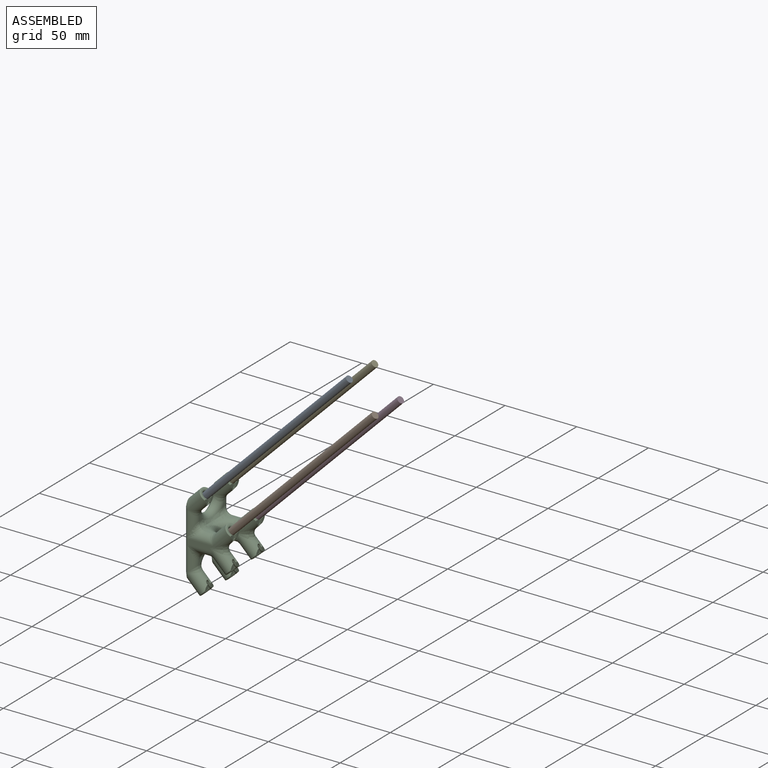
[diagram: assembled view]
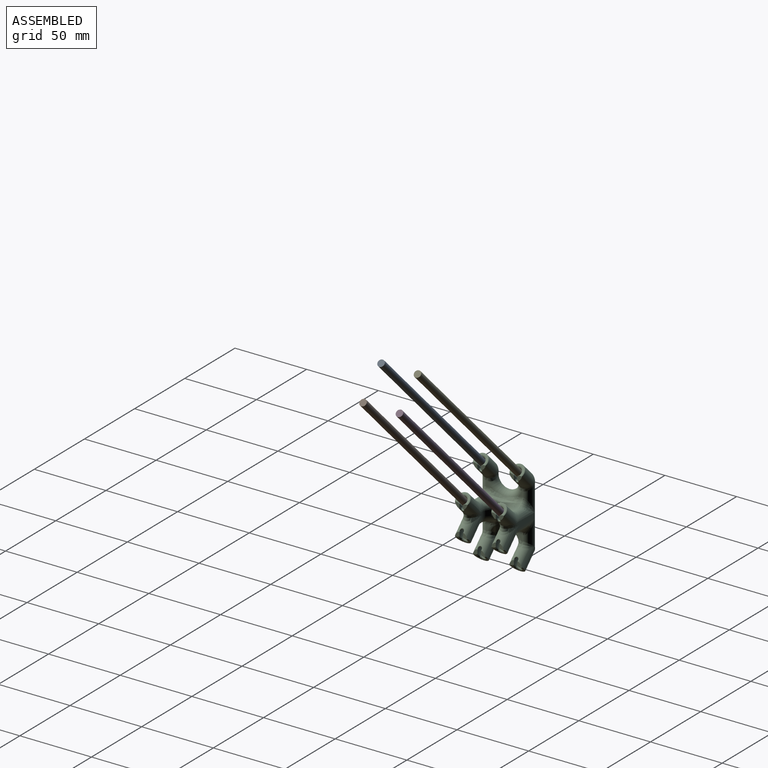
[diagram: assembled view, second angle]
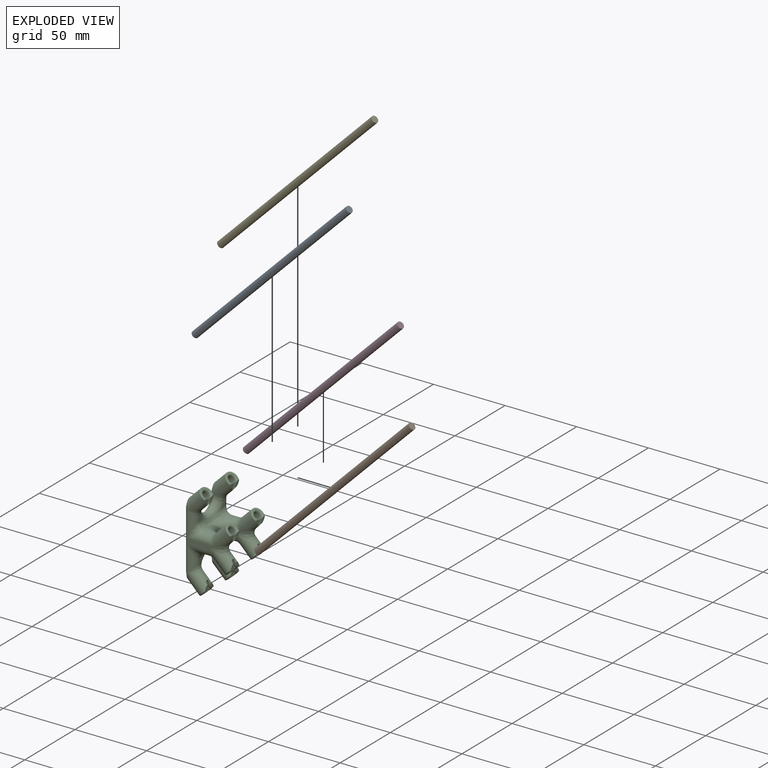
[diagram: exploded view]
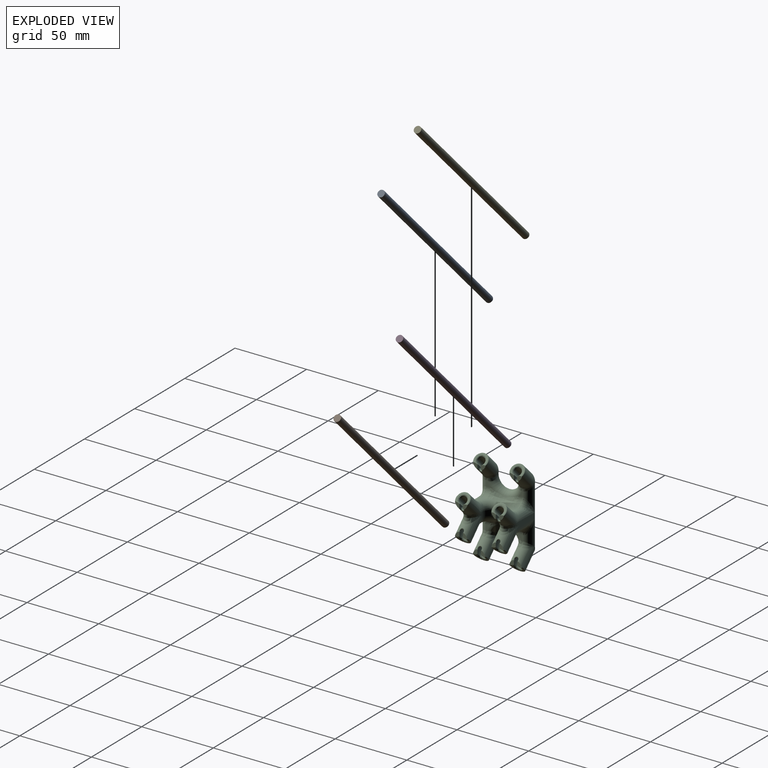
[diagram: exploded view, second angle]
ASSEMBLY  parts=5 mates=4
PART A: 3 faces, bbox 4.8x4.8x152.4 mm
  f0: cylinder r=2.38mm len=152.4mm, axis (0,0,-1), area 2280.2mm2, adj f1,f2
  f1: plane 4.76x4.76mm, normal (0,0,1), area 17.8mm2, adj f0
  f2: plane 4.76x4.76mm, normal (0,0,-1), area 17.8mm2, adj f0
PART B: same geometry as A
PART C: 252 faces, bbox 35.7x36.7x68.6 mm
  f0: plane 4.04x3.52mm, normal (1,0,0), area 7.5mm2, adj f102,f104,f118,f120,f164,f223,f239
  f1: plane 4.04x3.52mm, normal (1,0,0), area 7.5mm2, adj f103,f105,f117,f119,f166,f212,f236
  f2: plane 4.04x3.52mm, normal (1,0,0), area 7.5mm2, adj f78,f82,f96,f98,f160,f200,f232
  f3: plane 4.04x3.52mm, normal (1,0,0), area 7.5mm2, adj f80,f83,f95,f97,f162,f206,f235
  f4: cylinder r=5mm len=17.32mm, axis (0.71,0,0.71), area 356.9mm2, adj f10,f20,f45,f55,f60,f61,f62,f148
  f5: cylinder r=5mm len=17.32mm, axis (0.71,0,0.71), area 341mm2, adj f11,f21,f46,f54,f57,f58,f59,f149
  f6: cylinder r=2.54mm len=11.02mm, axis (0.71,0,0.71), area 154.4mm2, adj f8,f52,f177,f178,f179,f180
  f7: cylinder r=2.54mm len=11.02mm, axis (0.71,0,0.71), area 154.4mm2, adj f9,f53,f195,f196,f197,f198
  f8: bspline ~8.07x5.43mm, area 36.2mm2, adj f6,f11,f44,f149,f176,f181
  f9: bspline ~8.07x5.43mm, area 36.2mm2, adj f7,f10,f43,f148,f194,f199
  f10: plane 4.04x3.52mm, normal (1,0,0), area 7.5mm2, adj f4,f9,f43,f55,f157,f194,f231
  f11: plane 4.04x3.52mm, normal (1,0,0), area 7.5mm2, adj f5,f8,f44,f54,f159,f176,f229
  f12: cylinder r=5mm len=19.22mm, axis (0.71,0,0.71), area 315.3mm2, adj f18,f20,f25,f29,f39,f66,f67,f68
  f13: cylinder r=5mm len=19.22mm, axis (0.71,0,0.71), area 326.9mm2, adj f19,f21,f26,f30,f38,f63,f64,f65
  f14: cylinder r=2.54mm len=11.02mm, axis (0.71,0,0.71), area 154.4mm2, adj f16,f36,f189,f190,f191,f192
  f15: cylinder r=2.54mm len=11.02mm, axis (0.71,0,0.71), area 154.4mm2, adj f17,f37,f183,f184,f185,f186
  f16: bspline ~8.07x5.43mm, area 36.2mm2, adj f14,f19,f28,f151,f188,f193
  f17: bspline ~8.07x5.43mm, area 36.2mm2, adj f15,f18,f27,f150,f182,f187
  f18: plane 4.04x3.52mm, normal (1,0,0), area 7.5mm2, adj f12,f17,f27,f39,f153,f182,f225
  f19: plane 4.04x3.52mm, normal (1,0,0), area 7.5mm2, adj f13,f16,f28,f38,f155,f193,f227
  f20: plane 39.82x18mm, normal (0,-1,0), area 67.9mm2, adj f4,f12,f34,f50,f78,f89,f102,f111
  f21: plane 39.82x18mm, normal (0,1,0), area 67.9mm2, adj f5,f13,f35,f51,f80,f90,f103,f112
  f22: plane 3.84x2.56mm, normal (0,0,1), area 5.5mm2, adj f33,f35,f64,f70
  f23: plane 3.84x2.56mm, normal (0,0,1), area 5.5mm2, adj f31,f34,f67,f74
  f24: cylinder r=7.7mm len=15.4mm, axis (0,0,-1), area 91mm2, adj f25,f26,f29,f30,f31,f32,f33,f79
  f25: bspline ~7.95x7.08mm, area 1.1mm2, adj f12,f24,f141
  f26: bspline ~7.95x7.08mm, area 1.1mm2, adj f13,f24,f143
  f27: plane 9.02x4.73mm, normal (0.71,0,0.71), area 8.3mm2, adj f17,f18,f39,f150
  f28: plane 9.02x4.73mm, normal (0.71,0,0.71), area 8.3mm2, adj f16,f19,f38,f151
  f29: plane 10.18x10.18mm, normal (0,1,0), area 5.3mm2, adj f12,f24,f31,f68
  f30: plane 10.18x10.18mm, normal (0,-1,0), area 5.3mm2, adj f13,f24,f33,f63
  f31: torus R=12.7mm, axis (0,0,1), area 73.6mm2, adj f23,f24,f29,f32,f68,f73
  f32: bspline ~5.17x5.09mm, area 8.8mm2, adj f24,f31,f33,f72
  f33: torus R=12.7mm, axis (0,0,1), area 73.6mm2, adj f22,f24,f30,f32,f63,f71
  f34: cylinder r=5mm len=17.96mm, axis (1,0,0), area 74.8mm2, adj f20,f23,f66,f75
  f35: cylinder r=5mm len=17.96mm, axis (1,0,0), area 74.8mm2, adj f21,f22,f65,f69
  f36: plane 5.08x3.59mm, normal (0.71,0,0.71), area 20.3mm2, adj f14
  f37: plane 5.08x3.59mm, normal (0.71,0,0.71), area 20.3mm2, adj f15
  f38: torus R=4.5mm, axis (-0.71,0,-0.71), area 15.7mm2, adj f13,f19,f28,f151
  f39: torus R=4.5mm, axis (-0.71,0,-0.71), area 15.7mm2, adj f12,f18,f27,f150
  f40: plane 3.84x2.56mm, normal (1,0,0), area 5.5mm2, adj f49,f51,f58,f70
  f41: plane 3.84x2.56mm, normal (1,0,0), area 5.5mm2, adj f47,f50,f61,f74
  f42: cylinder r=7.7mm len=15.4mm, axis (-1,0,0), area 1mm2, adj f45,f46,f47,f48,f49,f250
  f43: plane 9.02x4.7mm, normal (0.71,0,0.71), area 8.2mm2, adj f9,f10,f55,f148
  f44: plane 9.02x4.7mm, normal (0.71,0,0.71), area 8.2mm2, adj f8,f11,f54,f149
  f45: plane 10.04x9.77mm, normal (0,1,0), area 5.3mm2, adj f4,f42,f47,f60,f251
  f46: plane 10.04x9.77mm, normal (0,-1,0), area 5.3mm2, adj f5,f42,f49,f59,f248
  f47: torus R=12.7mm, axis (1,0,0), area 73.6mm2, adj f41,f42,f45,f48,f60,f73
  f48: bspline ~5.17x5.09mm, area 8.8mm2, adj f42,f47,f49,f72
  f49: torus R=12.7mm, axis (1,0,0), area 73.6mm2, adj f40,f42,f46,f48,f59,f71
  f50: cylinder r=5mm len=17.96mm, axis (0,0,1), area 74.8mm2, adj f20,f41,f62,f75
  f51: cylinder r=5mm len=17.96mm, axis (0,0,1), area 74.8mm2, adj f21,f40,f57,f69
  f52: plane 5.08x3.59mm, normal (0.71,0,0.71), area 20.3mm2, adj f6
  f53: plane 5.08x3.59mm, normal (0.71,0,0.71), area 20.3mm2, adj f7
  f54: torus R=4.5mm, axis (-0.71,0,-0.71), area 15.7mm2, adj f5,f11,f44,f149
  f55: torus R=4.5mm, axis (-0.71,0,-0.71), area 15.7mm2, adj f4,f10,f43,f148
  f56: plane 48.5x31.61mm, normal (-1,0,0), area 1039.9mm2, adj f240,f241,f242,f243,f244,f245,f246,f247
  f57: bspline ~6.46x5.65mm, area 12.6mm2, adj f5,f51,f58
  f58: bspline ~3.55x1.47mm, area 1.7mm2, adj f5,f40,f57,f59
  f59: bspline ~15.45x9.76mm, area 29.5mm2, adj f5,f46,f49,f58
  f60: bspline ~15.45x9.76mm, area 29.5mm2, adj f4,f45,f47,f61
  f61: bspline ~3.55x1.47mm, area 1.7mm2, adj f4,f41,f60,f62
  f62: bspline ~6.46x5.16mm, area 12.6mm2, adj f4,f50,f61
  f63: bspline ~15.45x9.76mm, area 30mm2, adj f13,f30,f33,f64
  f64: bspline ~3.69x3.48mm, area 1.7mm2, adj f13,f22,f63,f65
  f65: bspline ~6.46x5.65mm, area 12.6mm2, adj f13,f35,f64
  f66: bspline ~6.46x5.16mm, area 12.6mm2, adj f12,f34,f67
  f67: bspline ~3.69x2.17mm, area 1.7mm2, adj f12,f23,f66,f68
  f68: bspline ~15.45x9.76mm, area 30mm2, adj f12,f29,f31,f67
  f69: bspline ~10x10mm, area 26.4mm2, adj f35,f51,f70
  f70: cylinder r=5mm len=5mm, axis (0,1,0), area 20.1mm2, adj f22,f40,f69,f71
  f71: bspline ~11.92x5.76mm, area 48.2mm2, adj f33,f49,f70,f72
  f72: bspline ~3.96x2.6mm, area 6.8mm2, adj f32,f48,f71,f73
  f73: bspline ~11.92x5.76mm, area 48.2mm2, adj f31,f47,f72,f74
  f74: cylinder r=5mm len=5mm, axis (0,1,0), area 20.1mm2, adj f23,f41,f73,f75
  f75: bspline ~10x10mm, area 26.4mm2, adj f34,f50,f74
  f76: plane 3.84x2.56mm, normal (0,0,-1), area 5.5mm2, adj f88,f90,f128,f134
  f77: plane 3.84x2.56mm, normal (0,0,-1), area 5.5mm2, adj f86,f89,f131,f138
  f78: cylinder r=5mm len=19.22mm, axis (0.71,0,-0.71), area 326.2mm2, adj f2,f20,f79,f84,f98,f130,f131,f132
  f79: bspline ~2.42x1.81mm, area 1.1mm2, adj f24,f78,f141
  f80: cylinder r=5mm len=19.22mm, axis (0.71,0,-0.71), area 315.5mm2, adj f3,f21,f81,f85,f97,f127,f128,f129
  f81: bspline ~2.42x1.81mm, area 1.1mm2, adj f24,f80,f143
  f82: plane 9.02x4.7mm, normal (0.71,0,-0.71), area 8.3mm2, adj f2,f96,f98,f146
  f83: plane 9.02x4.7mm, normal (0.71,0,-0.71), area 8.3mm2, adj f3,f95,f97,f147
  f84: plane 10.04x10.04mm, normal (0,1,0), area 5.3mm2, adj f24,f78,f86,f132
  f85: plane 10.04x10.04mm, normal (0,-1,0), area 5.3mm2, adj f24,f80,f88,f127
  f86: torus R=12.7mm, axis (0,0,-1), area 73.6mm2, adj f24,f77,f84,f87,f132,f137
  f87: bspline ~5.17x5.09mm, area 8.8mm2, adj f24,f86,f88,f136
  f88: torus R=12.7mm, axis (0,0,-1), area 73.6mm2, adj f24,f76,f85,f87,f127,f135
  f89: cylinder r=5mm len=17.96mm, axis (1,0,0), area 74.8mm2, adj f20,f77,f130,f139
  f90: cylinder r=5mm len=17.96mm, axis (1,0,0), area 74.8mm2, adj f21,f76,f129,f133
  f91: cylinder r=2.54mm len=11.02mm, axis (0.71,0,-0.71), area 154.4mm2, adj f92,f95,f207,f208,f209,f210
  f92: plane 5.08x3.59mm, normal (0.71,0,-0.71), area 20.3mm2, adj f91
  f93: cylinder r=2.54mm len=11.02mm, axis (0.71,0,-0.71), area 154.4mm2, adj f94,f96,f201,f202,f203,f204
  f94: plane 5.08x3.59mm, normal (0.71,0,-0.71), area 20.3mm2, adj f93
  f95: bspline ~8.07x5.43mm, area 36.2mm2, adj f3,f83,f91,f147,f206,f211
  f96: bspline ~8.07x5.43mm, area 36.2mm2, adj f2,f82,f93,f146,f200,f205
  f97: torus R=4.5mm, axis (-0.71,0,0.71), area 15.7mm2, adj f3,f80,f83,f147
  f98: torus R=4.5mm, axis (-0.71,0,0.71), area 15.7mm2, adj f2,f78,f82,f146
  f99: plane 3.84x2.56mm, normal (1,0,0), area 5.5mm2, adj f110,f112,f122,f134
  f100: plane 3.84x2.56mm, normal (1,0,0), area 5.5mm2, adj f108,f111,f125,f138
  f101: cylinder r=7.7mm len=15.4mm, axis (-1,0,0), area 1mm2, adj f106,f107,f108,f109,f110,f241
  f102: cylinder r=5mm len=17.32mm, axis (0.71,0,-0.71), area 340.5mm2, adj f0,f20,f106,f120,f124,f125,f126,f144
  f103: cylinder r=5mm len=17.32mm, axis (0.71,0,-0.71), area 352.1mm2, adj f1,f21,f107,f119,f121,f122,f123,f145
  f104: plane 9.02x4.73mm, normal (0.71,0,-0.71), area 8.2mm2, adj f0,f118,f120,f144
  f105: plane 9.02x4.73mm, normal (0.71,0,-0.71), area 8.2mm2, adj f1,f117,f119,f145
  f106: plane 10.17x9.9mm, normal (0,1,0), area 5.3mm2, adj f101,f102,f108,f124,f243
  f107: plane 10.17x9.9mm, normal (0,-1,0), area 5.3mm2, adj f101,f103,f110,f123,f240
  f108: torus R=12.7mm, axis (1,0,0), area 73.6mm2, adj f100,f101,f106,f109,f124,f137
  f109: bspline ~5.17x5.09mm, area 8.8mm2, adj f101,f108,f110,f136
  f110: torus R=12.7mm, axis (1,0,0), area 73.6mm2, adj f99,f101,f107,f109,f123,f135
  f111: cylinder r=5mm len=17.96mm, axis (0,0,-1), area 74.8mm2, adj f20,f100,f126,f139
  f112: cylinder r=5mm len=17.96mm, axis (0,0,-1), area 74.8mm2, adj f21,f99,f121,f133
  f113: cylinder r=2.54mm len=11.02mm, axis (0.71,0,-0.71), area 154.4mm2, adj f114,f117,f213,f214,f215,f216
  f114: plane 5.08x3.59mm, normal (0.71,0,-0.71), area 20.3mm2, adj f113
  f115: cylinder r=2.54mm len=11.02mm, axis (0.71,0,-0.71), area 154.4mm2, adj f116,f118,f219,f220,f221,f222
  f116: plane 5.08x3.59mm, normal (0.71,0,-0.71), area 20.3mm2, adj f115
  f117: bspline ~8.07x5.43mm, area 36.2mm2, adj f1,f105,f113,f145,f212,f217
  f118: bspline ~8.07x5.43mm, area 36.2mm2, adj f0,f104,f115,f144,f218,f223
  f119: torus R=4.5mm, axis (-0.71,0,0.71), area 15.7mm2, adj f1,f103,f105,f145
  f120: torus R=4.5mm, axis (-0.71,0,0.71), area 15.7mm2, adj f0,f102,f104,f144
  f121: bspline ~6.46x5.65mm, area 12.6mm2, adj f103,f112,f122
  f122: bspline ~3.69x2.17mm, area 1.7mm2, adj f99,f103,f121,f123
  f123: bspline ~15.45x9.76mm, area 30.1mm2, adj f103,f107,f110,f122
  f124: bspline ~15.45x9.76mm, area 30.1mm2, adj f102,f106,f108,f125
  f125: bspline ~3.55x1.47mm, area 1.7mm2, adj f100,f102,f124,f126
  f126: bspline ~6.46x5.16mm, area 12.6mm2, adj f102,f111,f125
  f127: bspline ~15.45x9.76mm, area 29.5mm2, adj f80,f85,f88,f128
  f128: bspline ~3.69x3.48mm, area 1.7mm2, adj f76,f80,f127,f129
  f129: bspline ~6.46x5.65mm, area 12.6mm2, adj f80,f90,f128
  f130: bspline ~6.46x5.16mm, area 12.6mm2, adj f78,f89,f131
  f131: bspline ~3.69x2.17mm, area 1.7mm2, adj f77,f78,f130,f132
  f132: bspline ~15.45x9.76mm, area 29.5mm2, adj f78,f84,f86,f131
  f133: bspline ~10x10mm, area 26.4mm2, adj f90,f112,f134
  f134: cylinder r=5mm len=5mm, axis (0,1,0), area 20.1mm2, adj f76,f99,f133,f135
  f135: bspline ~11.92x5.76mm, area 48.2mm2, adj f88,f110,f134,f136
  f136: bspline ~3.96x2.6mm, area 6.8mm2, adj f87,f109,f135,f137
  f137: bspline ~11.92x5.76mm, area 48.2mm2, adj f86,f108,f136,f138
  f138: cylinder r=5mm len=5mm, axis (0,1,0), area 20.1mm2, adj f77,f100,f137,f139
  f139: bspline ~10x10mm, area 26.4mm2, adj f89,f111,f138
  f140: bspline ~10.6x9.86mm, area 92.4mm2, adj f12,f78,f141
  f141: bspline ~3.02x2.71mm, area 1mm2, adj f25,f79,f140
  f142: bspline ~10.6x9.86mm, area 92.4mm2, adj f13,f80,f143
  f143: bspline ~3.02x2.71mm, area 1mm2, adj f26,f81,f142
  f144: plane 4.04x3.52mm, normal (1,0,0), area 7.5mm2, adj f102,f104,f118,f120,f165,f218,f238
  f145: plane 4.04x3.52mm, normal (1,0,0), area 7.5mm2, adj f103,f105,f117,f119,f167,f217,f237
  f146: plane 4.04x3.52mm, normal (1,0,0), area 7.5mm2, adj f78,f82,f96,f98,f161,f205,f233
  f147: plane 4.04x3.52mm, normal (1,0,0), area 7.5mm2, adj f80,f83,f95,f97,f163,f211,f234
  f148: plane 4.04x3.52mm, normal (1,0,0), area 7.5mm2, adj f4,f9,f43,f55,f156,f199,f230
  f149: plane 4.04x3.52mm, normal (1,0,0), area 7.5mm2, adj f5,f8,f44,f54,f158,f181,f228
  f150: plane 4.04x3.52mm, normal (1,0,0), area 7.5mm2, adj f12,f17,f27,f39,f152,f187,f224
  f151: plane 4.04x3.52mm, normal (1,0,0), area 7.5mm2, adj f13,f16,f28,f38,f154,f188,f226
  f152: plane 3.11x2.66mm, normal (0,-1,0), area 4.6mm2, adj f150,f175,f186,f187,f224
  f153: plane 3.11x2.66mm, normal (0,1,0), area 4.6mm2, adj f18,f175,f182,f183,f225
  f154: plane 3.11x2.66mm, normal (0,-1,0), area 4.6mm2, adj f151,f174,f188,f189,f226
  f155: plane 3.11x2.66mm, normal (0,1,0), area 4.6mm2, adj f19,f174,f192,f193,f227
  f156: plane 3.11x2.66mm, normal (0,-1,0), area 4.6mm2, adj f148,f172,f198,f199,f230
  f157: plane 3.11x2.66mm, normal (0,1,0), area 4.6mm2, adj f10,f172,f194,f195,f231
  f158: plane 3.11x2.66mm, normal (0,-1,0), area 4.6mm2, adj f149,f173,f180,f181,f228
  f159: plane 3.11x2.66mm, normal (0,1,0), area 4.6mm2, adj f11,f173,f176,f177,f229
  f160: plane 3.11x2.66mm, normal (0,-1,0), area 4.6mm2, adj f2,f171,f200,f201,f232
  f161: plane 3.11x2.66mm, normal (0,1,0), area 4.6mm2, adj f146,f171,f204,f205,f233
  f162: plane 3.11x2.66mm, normal (0,-1,0), area 4.6mm2, adj f3,f170,f206,f207,f235
  f163: plane 3.11x2.66mm, normal (0,1,0), area 4.6mm2, adj f147,f170,f210,f211,f234
  f164: plane 3.11x2.66mm, normal (0,-1,0), area 4.6mm2, adj f0,f168,f222,f223,f239
  f165: plane 3.11x2.66mm, normal (0,1,0), area 4.6mm2, adj f144,f168,f218,f219,f238
  f166: plane 3.11x2.66mm, normal (0,-1,0), area 4.6mm2, adj f1,f169,f212,f213,f236
  f167: plane 3.11x2.66mm, normal (0,1,0), area 4.6mm2, adj f145,f169,f216,f217,f237
  f168: cylinder r=1.25mm len=3.31mm, axis (-1,0,0), area 8.7mm2, adj f164,f165,f220,f221,f238,f239
  f169: cylinder r=1.25mm len=3.31mm, axis (-1,0,0), area 8.7mm2, adj f166,f167,f214,f215,f236,f237
  f170: cylinder r=1.25mm len=3.31mm, axis (-1,0,0), area 8.7mm2, adj f162,f163,f208,f209,f234,f235
  f171: cylinder r=1.25mm len=3.31mm, axis (-1,0,0), area 8.7mm2, adj f160,f161,f202,f203,f232,f233
  f172: cylinder r=1.25mm len=3.31mm, axis (-1,0,0), area 8.7mm2, adj f156,f157,f196,f197,f230,f231
  f173: cylinder r=1.25mm len=3.31mm, axis (-1,0,0), area 8.7mm2, adj f158,f159,f178,f179,f228,f229
  f174: cylinder r=1.25mm len=3.31mm, axis (-1,0,0), area 8.7mm2, adj f154,f155,f190,f191,f226,f227
  f175: cylinder r=1.25mm len=3.31mm, axis (-1,0,0), area 8.7mm2, adj f152,f153,f184,f185,f224,f225
  f176: bspline ~1.43x0.9mm, area 0.6mm2, adj f8,f11,f159,f177
  f177: cylinder r=0.5mm len=2.59mm, axis (0.71,0,0.71), area 1.6mm2, adj f6,f159,f176,f178
  f178: bspline ~2.22x1.92mm, area 1mm2, adj f6,f173,f177,f179
  f179: bspline ~2.22x1.92mm, area 1mm2, adj f6,f173,f178,f180
  f180: cylinder r=0.5mm len=2.59mm, axis (0.71,0,0.71), area 1.6mm2, adj f6,f158,f179,f181
  f181: bspline ~1.68x1.16mm, area 0.6mm2, adj f8,f149,f158,f180
  f182: bspline ~1.43x0.9mm, area 0.6mm2, adj f17,f18,f153,f183
  f183: cylinder r=0.5mm len=2.59mm, axis (0.71,0,0.71), area 1.6mm2, adj f15,f153,f182,f184
  f184: bspline ~2.22x1.92mm, area 1mm2, adj f15,f175,f183,f185
  f185: bspline ~2.22x1.92mm, area 1mm2, adj f15,f175,f184,f186
  f186: cylinder r=0.5mm len=2.59mm, axis (0.71,0,0.71), area 1.6mm2, adj f15,f152,f185,f187
  f187: bspline ~1.43x0.9mm, area 0.6mm2, adj f17,f150,f152,f186
  f188: bspline ~1.17x0.81mm, area 0.6mm2, adj f16,f151,f154,f189
  f189: cylinder r=0.5mm len=2.59mm, axis (0.71,0,0.71), area 1.6mm2, adj f14,f154,f188,f190
  f190: bspline ~2.22x1.92mm, area 1mm2, adj f14,f174,f189,f191
  f191: bspline ~2.22x1.92mm, area 1mm2, adj f14,f174,f190,f192
  f192: cylinder r=0.5mm len=2.59mm, axis (0.71,0,0.71), area 1.6mm2, adj f14,f155,f191,f193
  f193: bspline ~1.43x0.9mm, area 0.6mm2, adj f16,f19,f155,f192
  f194: bspline ~1.43x0.9mm, area 0.6mm2, adj f9,f10,f157,f195
  f195: cylinder r=0.5mm len=2.59mm, axis (0.71,0,0.71), area 1.6mm2, adj f7,f157,f194,f196
  f196: bspline ~2.22x1.92mm, area 1mm2, adj f7,f172,f195,f197
  f197: bspline ~2.22x1.92mm, area 1mm2, adj f7,f172,f196,f198
  f198: cylinder r=0.5mm len=2.59mm, axis (0.71,0,0.71), area 1.6mm2, adj f7,f156,f197,f199
  f199: bspline ~1.68x1.16mm, area 0.6mm2, adj f9,f148,f156,f198
  f200: bspline ~1.68x1.16mm, area 0.6mm2, adj f2,f96,f160,f201
  f201: cylinder r=0.5mm len=2.59mm, axis (0.71,0,-0.71), area 1.6mm2, adj f93,f160,f200,f202
  f202: bspline ~2.22x1.92mm, area 1mm2, adj f93,f171,f201,f203
  f203: bspline ~2.22x1.92mm, area 1mm2, adj f93,f171,f202,f204
  f204: cylinder r=0.5mm len=2.59mm, axis (0.71,0,-0.71), area 1.6mm2, adj f93,f161,f203,f205
  f205: bspline ~1.43x0.9mm, area 0.6mm2, adj f96,f146,f161,f204
  f206: bspline ~1.68x1.16mm, area 0.6mm2, adj f3,f95,f162,f207
  f207: cylinder r=0.5mm len=2.59mm, axis (0.71,0,-0.71), area 1.6mm2, adj f91,f162,f206,f208
  f208: bspline ~2.22x1.92mm, area 1mm2, adj f91,f170,f207,f209
  f209: bspline ~2.22x1.92mm, area 1mm2, adj f91,f170,f208,f210
  f210: cylinder r=0.5mm len=2.59mm, axis (0.71,0,-0.71), area 1.6mm2, adj f91,f163,f209,f211
  f211: bspline ~1.43x0.9mm, area 0.6mm2, adj f95,f147,f163,f210
  f212: bspline ~1.68x1.16mm, area 0.6mm2, adj f1,f117,f166,f213
  f213: cylinder r=0.5mm len=2.59mm, axis (0.71,0,-0.71), area 1.6mm2, adj f113,f166,f212,f214
  f214: bspline ~2.22x1.92mm, area 1mm2, adj f113,f169,f213,f215
  f215: bspline ~2.22x1.92mm, area 1mm2, adj f113,f169,f214,f216
  f216: cylinder r=0.5mm len=2.59mm, axis (0.71,0,-0.71), area 1.6mm2, adj f113,f167,f215,f217
  f217: bspline ~1.68x1.16mm, area 0.6mm2, adj f117,f145,f167,f216
  f218: bspline ~1.17x0.81mm, area 0.6mm2, adj f118,f144,f165,f219
  f219: cylinder r=0.5mm len=2.59mm, axis (0.71,0,-0.71), area 1.6mm2, adj f115,f165,f218,f220
  f220: bspline ~2.22x1.92mm, area 1mm2, adj f115,f168,f219,f221
  f221: bspline ~2.22x1.92mm, area 1mm2, adj f115,f168,f220,f222
  f222: cylinder r=0.5mm len=2.59mm, axis (0.71,0,-0.71), area 1.6mm2, adj f115,f164,f221,f223
  f223: bspline ~1.68x1.16mm, area 0.6mm2, adj f0,f118,f164,f222
  f224: bspline ~2.7x2.53mm, area 3.5mm2, adj f12,f150,f152,f175,f225
  f225: bspline ~2.65x2.45mm, area 3.5mm2, adj f12,f18,f153,f175,f224
  f226: bspline ~2.7x2.53mm, area 3.5mm2, adj f13,f151,f154,f174,f227
  f227: bspline ~2.65x2.45mm, area 3.5mm2, adj f13,f19,f155,f174,f226
  f228: bspline ~2.7x2.53mm, area 3.5mm2, adj f5,f149,f158,f173,f229
  f229: bspline ~2.65x2.45mm, area 3.5mm2, adj f5,f11,f159,f173,f228
  f230: bspline ~2.7x2.53mm, area 3.5mm2, adj f4,f148,f156,f172,f231
  f231: bspline ~2.65x2.45mm, area 3.5mm2, adj f4,f10,f157,f172,f230
  f232: bspline ~2.65x2.45mm, area 3.5mm2, adj f2,f78,f160,f171,f233
  f233: bspline ~2.7x2.53mm, area 3.5mm2, adj f78,f146,f161,f171,f232
  f234: bspline ~2.7x2.53mm, area 3.5mm2, adj f80,f147,f163,f170,f235
  f235: bspline ~2.65x2.45mm, area 3.5mm2, adj f3,f80,f162,f170,f234
  f236: bspline ~2.65x2.45mm, area 3.5mm2, adj f1,f103,f166,f169,f237
  f237: bspline ~2.7x2.53mm, area 3.5mm2, adj f103,f145,f167,f169,f236
  f238: bspline ~2.7x2.53mm, area 3.5mm2, adj f102,f144,f165,f168,f239
  f239: bspline ~2.65x2.45mm, area 3.5mm2, adj f0,f102,f164,f168,f238
  f240: plane 1.91x1.91mm, normal (-0.71,-0.71,0), area 0.7mm2, adj f56,f107,f241,f242
  f241: cone r=9.61mm half-angle=45deg, axis (-1,0,0), area 73.2mm2, adj f56,f101,f240,f243
  f242: bspline ~10.01x5.72mm, area 28.6mm2, adj f56,f103,f240,f244
  f243: plane 1.91x1.91mm, normal (-0.71,0.71,0), area 0.7mm2, adj f56,f106,f241,f245
  f244: plane 39.73x1.91mm, normal (-0.71,0.71,0), area 107mm2, adj f21,f56,f242,f246
  f245: bspline ~10.01x5.72mm, area 28.6mm2, adj f56,f102,f243,f247
  f246: bspline ~10.01x5.72mm, area 28.6mm2, adj f5,f56,f244,f248
  f247: plane 39.73x1.91mm, normal (-0.71,-0.71,0), area 107mm2, adj f20,f56,f245,f249
  f248: plane 1.91x1.91mm, normal (-0.71,-0.71,0), area 0.7mm2, adj f46,f56,f246,f250
  f249: bspline ~10.01x5.72mm, area 28.6mm2, adj f4,f56,f247,f251
  f250: cone r=7.7mm half-angle=45deg, axis (-1,0,0), area 73.2mm2, adj f42,f56,f248,f251
  f251: plane 1.91x1.91mm, normal (-0.71,0.71,0), area 0.7mm2, adj f45,f56,f249,f250
PART D: same geometry as A
PART E: same geometry as A
PLACE A rot(axis=(0.92,0,-0.38),180deg) t=(111.78,-14.71,132.79)mm
PLACE B rot(axis=(0.92,0,-0.38),180deg) t=(129.74,-14.71,114.83)mm
PLACE C at identity
PLACE D rot(axis=(0.92,0,-0.38),180deg) t=(129.74,10.69,114.83)mm
PLACE E rot(axis=(0.92,0,-0.38),180deg) t=(111.78,10.69,132.79)mm
MATE revolute B.f0 <-> C.f15  axis (-0.71,0,-0.71) through (21.98,-14.71,7.07)mm
MATE revolute D.f0 <-> C.f14  axis (-0.71,0,-0.71) through (21.98,10.69,7.07)mm
MATE revolute E.f0 <-> C.f5  axis (-0.71,0,-0.71) through (4.02,10.69,25.03)mm
MATE revolute A.f0 <-> C.f4  axis (-0.71,0,-0.71) through (4.02,-14.71,25.03)mm
